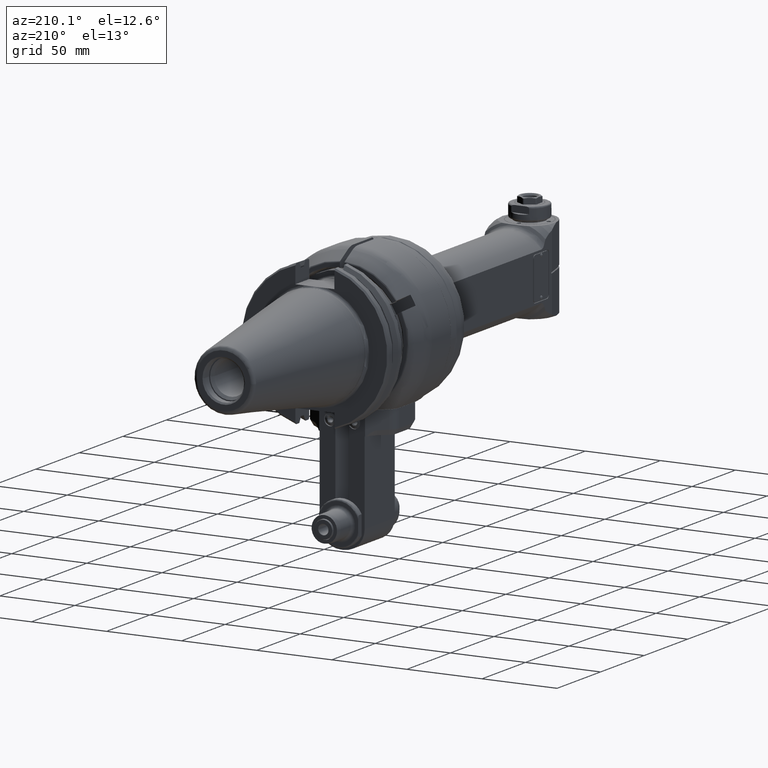
[diagram: clean part render]
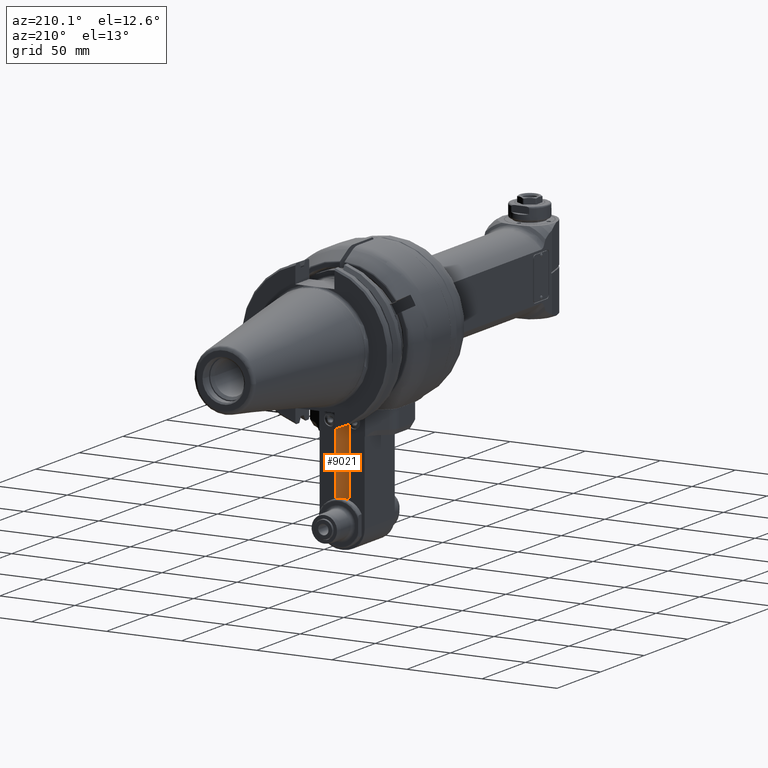
[diagram: same view with one face highlighted and labeled with its STEP entity id]
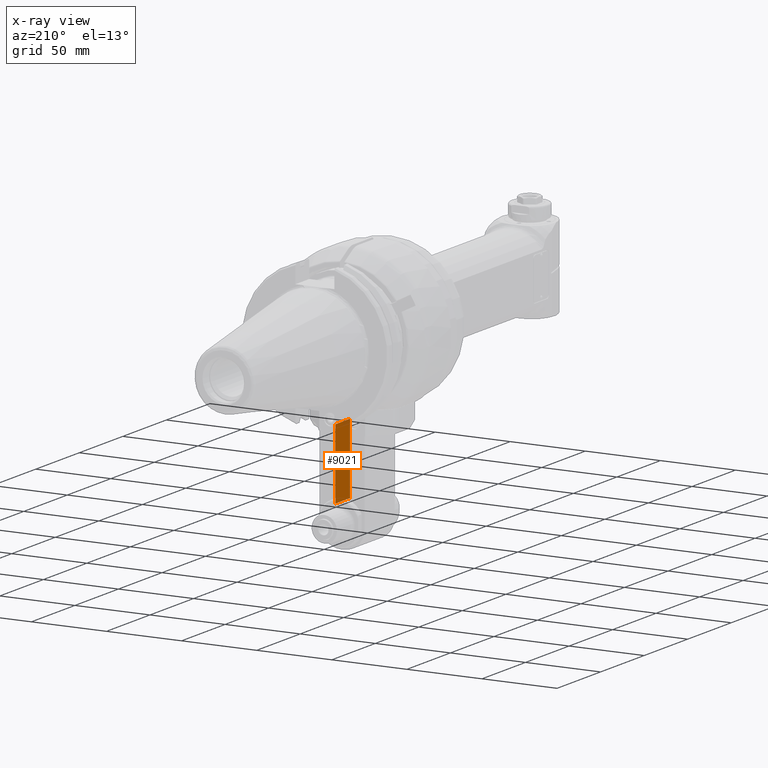
[diagram: x-ray of the same camera — body ghosted, the highlighted face saturated]
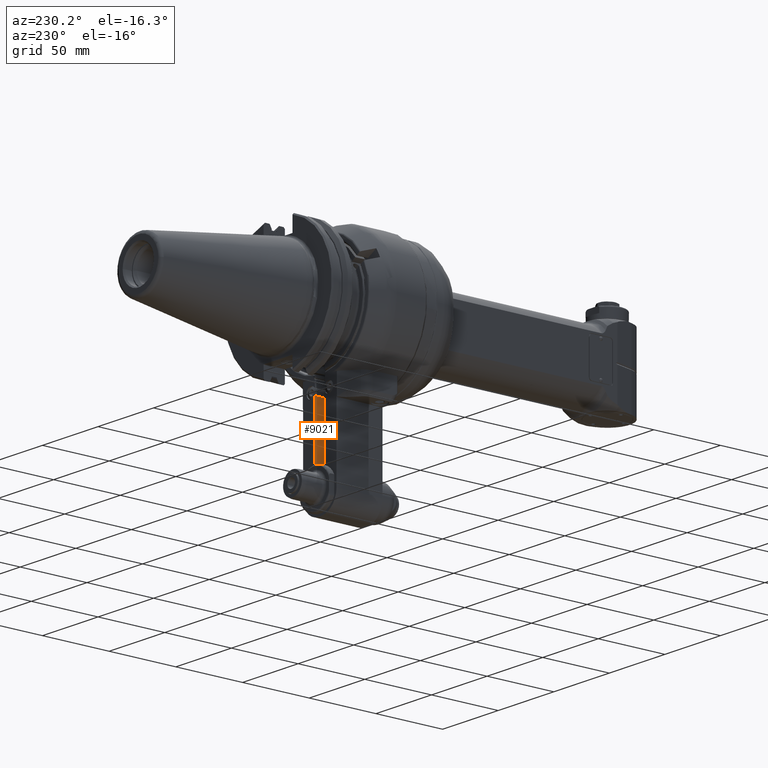
[diagram: same view with one face highlighted and labeled with its STEP entity id]
A machine part, auxiliary view. The second image highlights one B-rep face of the part: STEP entity #9021.
The next image is the same camera in x-ray: the body ghosted, the highlighted face saturated — about 3% of this face is hidden behind the body in this view.
A second angle (auxiliary view) of the same face is appended — the face is thin or edge-on in the first view.
In plain terms, the highlighted planar face has unit normal (1, 0, 0).
Its self-contained STEP definition (entity closure, byte-faithful):
#572=PLANE('',#9874);
#938=FACE_OUTER_BOUND('',#1529,.T.);
#1529=EDGE_LOOP('',(#6965,#6966,#6967,#6968,#6969,#6970));
#2113=LINE('',#15116,#2709);
#2114=LINE('',#15120,#2710);
#2120=LINE('',#15159,#2716);
#2121=LINE('',#15162,#2717);
#2122=LINE('',#15164,#2718);
#2123=LINE('',#15165,#2719);
#2709=VECTOR('',#11628,46.83463549615);
#2710=VECTOR('',#11633,17.);
#2716=VECTOR('',#11683,0.2428892519069);
#2717=VECTOR('',#11686,2.875794996333);
#2718=VECTOR('',#11687,17.);
#2719=VECTOR('',#11688,43.71595124791);
#4011=VERTEX_POINT('',#15113);
#4012=VERTEX_POINT('',#15115);
#4013=VERTEX_POINT('',#15119);
#4022=VERTEX_POINT('',#15150);
#4025=VERTEX_POINT('',#15161);
#4026=VERTEX_POINT('',#15163);
#5070=EDGE_CURVE('',#4011,#4012,#2113,.T.);
#5072=EDGE_CURVE('',#4012,#4013,#2114,.T.);
#5093=EDGE_CURVE('',#4013,#4022,#2120,.T.);
#5094=EDGE_CURVE('',#4022,#4025,#2121,.T.);
#5095=EDGE_CURVE('',#4011,#4026,#2122,.T.);
#5096=EDGE_CURVE('',#4025,#4026,#2123,.T.);
#6965=ORIENTED_EDGE('',*,*,#5094,.F.);
#6966=ORIENTED_EDGE('',*,*,#5093,.F.);
#6967=ORIENTED_EDGE('',*,*,#5072,.F.);
#6968=ORIENTED_EDGE('',*,*,#5070,.F.);
#6969=ORIENTED_EDGE('',*,*,#5095,.T.);
#6970=ORIENTED_EDGE('',*,*,#5096,.F.);
#9021=ADVANCED_FACE('',(#938),#572,.F.);
#9874=AXIS2_PLACEMENT_3D('',#15160,#11684,#11685);
#11628=DIRECTION('',(0.,0.,-1.));
#11633=DIRECTION('',(0.,1.,0.));
#11683=DIRECTION('',(0.,2.457317042038E-12,1.));
#11684=DIRECTION('center_axis',(1.,0.,0.));
#11685=DIRECTION('ref_axis',(0.,0.,1.));
#11686=DIRECTION('',(0.,0.,1.));
#11687=DIRECTION('',(0.,1.,0.));
#11688=DIRECTION('',(0.,-1.414065489747E-14,1.));
#15113=CARTESIAN_POINT('',(4.5,22.5,-52.5));
#15115=CARTESIAN_POINT('',(4.5,22.5,-99.33463549615));
#15116=CARTESIAN_POINT('',(4.5,22.5,-52.5));
#15119=CARTESIAN_POINT('',(4.5,39.5,-99.33463549615));
#15120=CARTESIAN_POINT('',(4.5,22.5,-99.33463549615));
#15150=CARTESIAN_POINT('',(4.5,39.5,-99.09174624424));
#15159=CARTESIAN_POINT('',(4.5,39.5,-99.33463549615));
#15160=CARTESIAN_POINT('Origin',(4.5,39.,-39.375));
#15161=CARTESIAN_POINT('',(4.5,39.5,-96.21595124791));
#15162=CARTESIAN_POINT('',(4.5,39.5,-99.09174624424));
#15163=CARTESIAN_POINT('',(4.5,39.5,-52.5));
#15164=CARTESIAN_POINT('',(4.5,22.5,-52.5));
#15165=CARTESIAN_POINT('',(4.5,39.5,-96.21595124791));